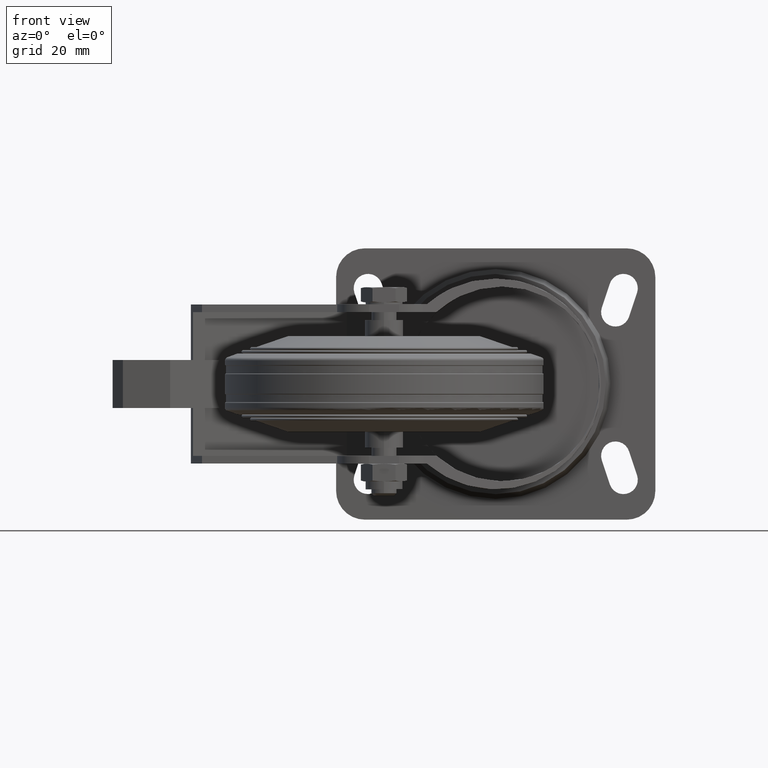
[diagram: clean part render]
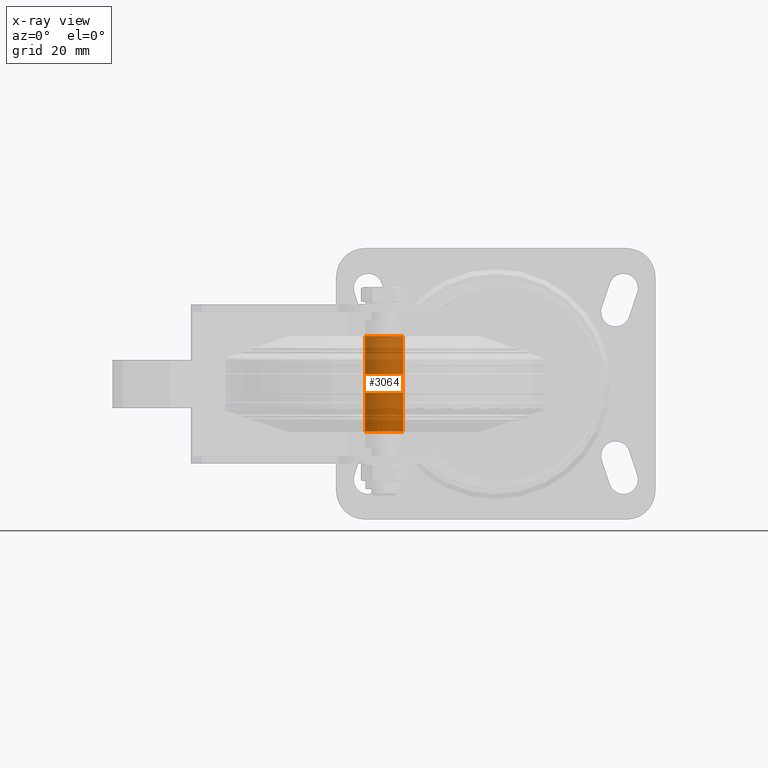
[diagram: x-ray — body ghosted, one internal face saturated and labeled with its STEP entity id]
A machine part, front view, then the same camera in x-ray: the body is ghosted and one INTERNAL B-rep face — a face not visible from any outside direction — is saturated and labeled: STEP entity #3064.
In plain terms, the highlighted cylindrical surface (bore or boss wall) has radius 6 mm, axis along (-0, 0, -1).
Its self-contained STEP definition (entity closure, byte-faithful):
#430=LINE('',#5478,#624);
#624=VECTOR('',#4492,6.);
#658=CYLINDRICAL_SURFACE('',#3547,6.);
#845=FACE_OUTER_BOUND('',#1070,.T.);
#1070=EDGE_LOOP('',(#2837,#2838,#2839,#2840));
#1242=CIRCLE('',#3534,6.);
#1249=CIRCLE('',#3546,6.);
#1560=VERTEX_POINT('',#5456);
#1565=VERTEX_POINT('',#5475);
#1980=EDGE_CURVE('',#1560,#1560,#1242,.T.);
#1989=EDGE_CURVE('',#1565,#1565,#1249,.T.);
#1990=EDGE_CURVE('',#1565,#1560,#430,.T.);
#2837=ORIENTED_EDGE('',*,*,#1989,.F.);
#2838=ORIENTED_EDGE('',*,*,#1990,.T.);
#2839=ORIENTED_EDGE('',*,*,#1980,.T.);
#2840=ORIENTED_EDGE('',*,*,#1990,.F.);
#3064=ADVANCED_FACE('',(#845),#658,.F.);
#3534=AXIS2_PLACEMENT_3D('',#5457,#4462,#4463);
#3546=AXIS2_PLACEMENT_3D('',#5476,#4488,#4489);
#3547=AXIS2_PLACEMENT_3D('',#5477,#4490,#4491);
#4462=DIRECTION('center_axis',(6.12323399573677E-17,0.,-1.));
#4463=DIRECTION('ref_axis',(-1.,0.,-6.12323399573677E-17));
#4488=DIRECTION('center_axis',(6.12323399573677E-17,0.,-1.));
#4489=DIRECTION('ref_axis',(-1.,0.,-6.12323399573677E-17));
#4490=DIRECTION('center_axis',(-5.71914493359824E-17,0.,-1.));
#4491=DIRECTION('ref_axis',(-1.,0.,5.71914493359824E-17));
#4492=DIRECTION('',(-5.71914493359824E-17,0.,-1.));
#5456=CARTESIAN_POINT('',(6.,-7.34788079488412E-16,-15.));
#5457=CARTESIAN_POINT('Origin',(9.18485099360515E-16,0.,-15.));
#5475=CARTESIAN_POINT('',(6.,-7.34788079488412E-16,15.));
#5476=CARTESIAN_POINT('Origin',(-9.18485099360515E-16,0.,15.));
#5477=CARTESIAN_POINT('Origin',(-8.57871740039735E-16,0.,-15.));
#5478=CARTESIAN_POINT('',(6.,-7.34788079488412E-16,-15.));